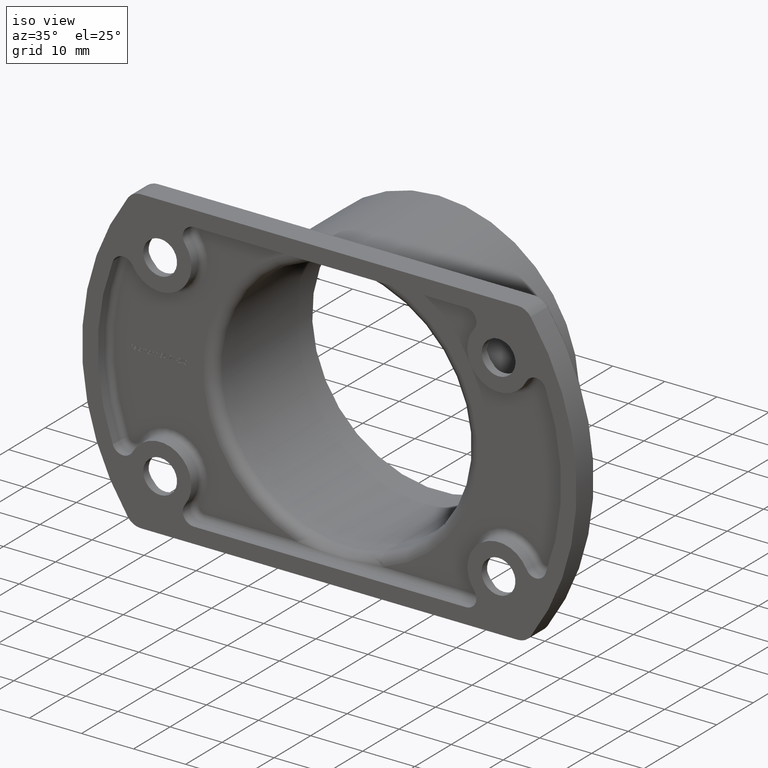
[diagram: clean part render]
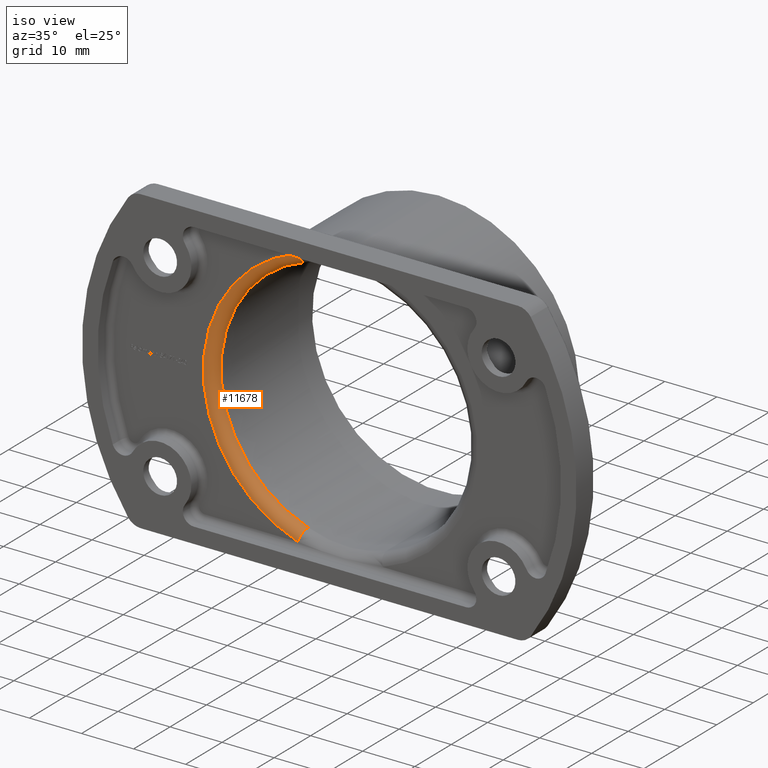
[diagram: same view with one face highlighted and labeled with its STEP entity id]
A machine part, iso view. The second image highlights one B-rep face of the part: STEP entity #11678.
In plain terms, the highlighted toroidal blend (fillet) surface has major radius 26.3 mm and minor (blend) radius 2 mm.
Its self-contained STEP definition (entity closure, byte-faithful):
#69 = VERTEX_POINT ( 'NONE', #4402 ) ;
#394 = DIRECTION ( 'NONE',  ( 0.000000000000000000, 0.000000000000000000, -1.000000000000000000 ) ) ;
#521 = CIRCLE ( 'NONE', #2372, 1.999999999999999112 ) ;
#561 = CARTESIAN_POINT ( 'NONE',  ( 0.000000000000000000, 5.000000000000000888, 0.000000000000000000 ) ) ;
#1157 = CIRCLE ( 'NONE', #8410, 26.30000000000000426 ) ;
#1475 = DIRECTION ( 'NONE',  ( -0.000000000000000000, 1.000000000000000000, -0.000000000000000000 ) ) ;
#2372 = AXIS2_PLACEMENT_3D ( 'NONE', #5410, #7430, #11757 ) ;
#3081 = EDGE_CURVE ( 'NONE', #5817, #10271, #521, .T. ) ;
#3449 = AXIS2_PLACEMENT_3D ( 'NONE', #12892, #9752, #4500 ) ;
#3565 = TOROIDAL_SURFACE ( 'NONE', #9605, 26.30000000000000426, 2.000000000000000000 ) ;
#3853 = DIRECTION ( 'NONE',  ( 0.000000000000000000, -1.000000000000000000, 0.000000000000000000 ) ) ;
#3865 = CIRCLE ( 'NONE', #10968, 24.30000000000000071 ) ;
#4402 = CARTESIAN_POINT ( 'NONE',  ( -8.166394553289727298, 3.000000000000000000, -25.00000000000000000 ) ) ;
#4500 = DIRECTION ( 'NONE',  ( 0.3105092986041719794, 0.000000000000000000, 0.9505703422053232154 ) ) ;
#4897 = DIRECTION ( 'NONE',  ( 0.000000000000000000, 0.000000000000000000, -1.000000000000000000 ) ) ;
#5297 = ORIENTED_EDGE ( 'NONE', *, *, #7405, .F. ) ;
#5410 = CARTESIAN_POINT ( 'NONE',  ( -8.166394553289739733, 5.000000000000000000, 24.99999999999999645 ) ) ;
#5817 = VERTEX_POINT ( 'NONE', #9698 ) ;
#6395 = CARTESIAN_POINT ( 'NONE',  ( 0.000000000000000000, 5.000000000000000888, 0.000000000000000000 ) ) ;
#6675 = CARTESIAN_POINT ( 'NONE',  ( -7.545375956081393554, 5.000000000000000888, 23.09885931558934757 ) ) ;
#6684 = CARTESIAN_POINT ( 'NONE',  ( -7.545375956081382895, 5.000000000000000888, -23.09885931558935113 ) ) ;
#6832 = EDGE_LOOP ( 'NONE', ( #13454, #5297, #8520, #9187 ) ) ;
#7329 = FACE_OUTER_BOUND ( 'NONE', #6832, .T. ) ;
#7405 = EDGE_CURVE ( 'NONE', #10271, #8387, #3865, .T. ) ;
#7430 = DIRECTION ( 'NONE',  ( 0.9505703422053231044, 0.000000000000000000, 0.3105092986041722569 ) ) ;
#7441 = CIRCLE ( 'NONE', #3449, 1.999999999999998890 ) ;
#7705 = CARTESIAN_POINT ( 'NONE',  ( 0.000000000000000000, 3.000000000000000000, 0.000000000000000000 ) ) ;
#8387 = VERTEX_POINT ( 'NONE', #6684 ) ;
#8410 = AXIS2_PLACEMENT_3D ( 'NONE', #7705, #1475, #394 ) ;
#8520 = ORIENTED_EDGE ( 'NONE', *, *, #3081, .F. ) ;
#8589 = DIRECTION ( 'NONE',  ( 0.000000000000000000, -1.000000000000000000, 0.000000000000000000 ) ) ;
#8674 = DIRECTION ( 'NONE',  ( 0.000000000000000000, 0.000000000000000000, -1.000000000000000000 ) ) ;
#9187 = ORIENTED_EDGE ( 'NONE', *, *, #11798, .F. ) ;
#9579 = EDGE_CURVE ( 'NONE', #69, #8387, #7441, .T. ) ;
#9605 = AXIS2_PLACEMENT_3D ( 'NONE', #6395, #8589, #8674 ) ;
#9698 = CARTESIAN_POINT ( 'NONE',  ( -8.166394553289741509, 3.000000000000000000, 24.99999999999999645 ) ) ;
#9752 = DIRECTION ( 'NONE',  ( -0.9505703422053232154, 0.000000000000000000, 0.3105092986041718128 ) ) ;
#10271 = VERTEX_POINT ( 'NONE', #6675 ) ;
#10968 = AXIS2_PLACEMENT_3D ( 'NONE', #561, #3853, #4897 ) ;
#11678 = ADVANCED_FACE ( 'NONE', ( #7329 ), #3565, .T. ) ;
#11757 = DIRECTION ( 'NONE',  ( 0.3105092986041723679, 0.000000000000000000, -0.9505703422053231044 ) ) ;
#11798 = EDGE_CURVE ( 'NONE', #69, #5817, #1157, .T. ) ;
#12892 = CARTESIAN_POINT ( 'NONE',  ( -8.166394553289727298, 5.000000000000000000, -25.00000000000000000 ) ) ;
#13454 = ORIENTED_EDGE ( 'NONE', *, *, #9579, .T. ) ;